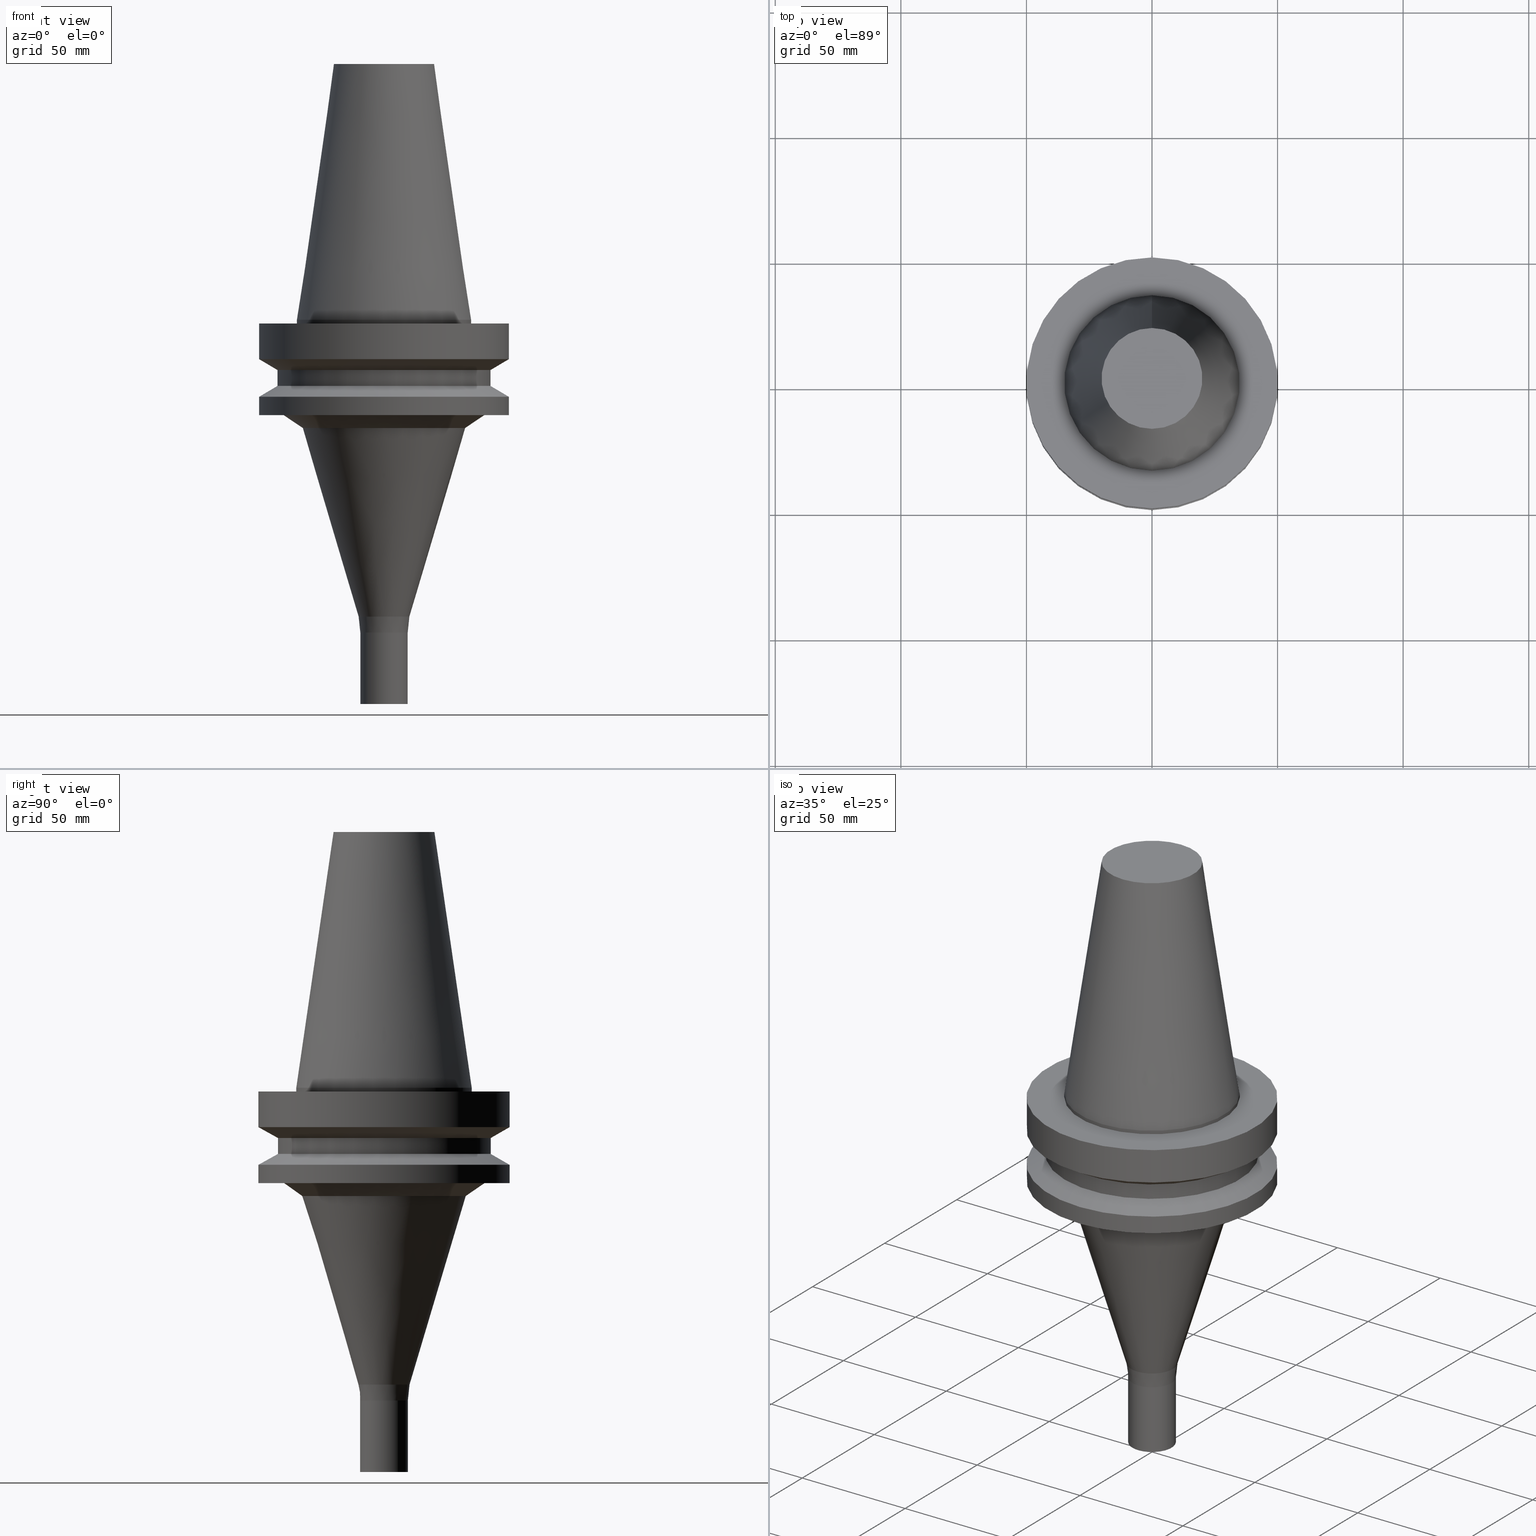
[diagram: canonical four-view strip — front | top / right | iso, engineering-drawing reading convention]
A machine part, canonical four-view strip (front | top / right | iso — engineering-drawing reading convention). The complete STEP part file that produces these views, byte-faithful:
ISO-10303-21;
HEADER;
FILE_DESCRIPTION((''),'1');
FILE_NAME('//Big_tech03/bigt/Translate/11_3D_Field/02_Step_Field/71_\X2\5207524A5DE55177\X0\/11_\X2\30B330F330BF30AF30C830B030EA30C330D7\X0\ CG/01_\X2\30D930FC30B930DB30EB30C0\X0\/BBT50-CG19-153.stp','2013-07-26T00:21:45',(''),(''),'Spatial Interop R18','Kubotek KeyCreator V8.5.1 (14335)',' ');
FILE_SCHEMA(('CONFIG_CONTROL_DESIGN'));
ENDSEC;
DATA;
#1=DESIGN_CONTEXT('',#27,'design');
#2=APPLICATION_PROTOCOL_DEFINITION('INTERNATIONAL STANDARD','config_control_design',1994,#27);
#3=PRODUCT_CATEGORY_RELATIONSHIP('NONE','NONE',#28,#29);
#4=DATE_AND_TIME(#30,#31);
#5=DATE_TIME_ROLE('creation_date');
#6=DATE_TIME_ROLE('classification_date');
#7=PERSON_AND_ORGANIZATION_ROLE('creator');
#8=PERSON_AND_ORGANIZATION_ROLE('design_supplier');
#9=PERSON_AND_ORGANIZATION_ROLE('classification_officer');
#10=PERSON_AND_ORGANIZATION_ROLE('design_owner');
#11=APPROVAL_PERSON_ORGANIZATION(#32,#33,#34);
#12=APPROVAL_DATE_TIME(#4,#33);
#13=CC_DESIGN_APPROVAL(#33,(#35,#36,#37));
#14=CC_DESIGN_DATE_AND_TIME_ASSIGNMENT(#4,#5,(#37));
#15=CC_DESIGN_DATE_AND_TIME_ASSIGNMENT(#4,#6,(#35));
#16=CC_DESIGN_PERSON_AND_ORGANIZATION_ASSIGNMENT(#32,#10,(#38));
#17=CC_DESIGN_PERSON_AND_ORGANIZATION_ASSIGNMENT(#32,#7,(#37));
#18=CC_DESIGN_PERSON_AND_ORGANIZATION_ASSIGNMENT(#32,#7,(#36));
#19=CC_DESIGN_PERSON_AND_ORGANIZATION_ASSIGNMENT(#32,#8,(#36));
#20=CC_DESIGN_SECURITY_CLASSIFICATION(#35,(#36));
#21=CC_DESIGN_PERSON_AND_ORGANIZATION_ASSIGNMENT(#32,#9,(#35));
#22=SHAPE_DEFINITION_REPRESENTATION(#39,#40);
#23= (GEOMETRIC_REPRESENTATION_CONTEXT(3)GLOBAL_UNCERTAINTY_ASSIGNED_CONTEXT((#43))GLOBAL_UNIT_ASSIGNED_CONTEXT((#45,#46,#47))REPRESENTATION_CONTEXT('NONE','WORKSPACE'));
#27=APPLICATION_CONTEXT('CONFIGURATION CONTROLLED 3D DESIGNS OF MECHANICAL PARTS AND ASSEMBLIES');
#28=PRODUCT_CATEGORY('part','NONE');
#29=PRODUCT_RELATED_PRODUCT_CATEGORY('detail',' ',(#38));
#30=CALENDAR_DATE(2013,26,6);
#31=LOCAL_TIME(9,21,45.0,#49);
#32=PERSON_AND_ORGANIZATION(#50,#51);
#33=APPROVAL(#52,'SOLID MODEL');
#34=APPROVAL_ROLE('APPROVED');
#35=SECURITY_CLASSIFICATION('','',#53);
#36=PRODUCT_DEFINITION_FORMATION_WITH_SPECIFIED_SOURCE(' ','NONE',#38,.NOT_KNOWN.);
#37=PRODUCT_DEFINITION('NONE','NONE',#36,#1);
#38=PRODUCT('1','1','PART-1-DESC',(#54));
#39=PRODUCT_DEFINITION_SHAPE('NONE','NONE',#37);
#40=ADVANCED_BREP_SHAPE_REPRESENTATION('1',(#55,#56),#23);
#43=UNCERTAINTY_MEASURE_WITH_UNIT(LENGTH_MEASURE(1.0E-006),#45,'','');
#45= (CONVERSION_BASED_UNIT('MILLIMETRE',#59)LENGTH_UNIT()NAMED_UNIT(#62));
#46= (NAMED_UNIT(#64)PLANE_ANGLE_UNIT()SI_UNIT($,.RADIAN.));
#47= (NAMED_UNIT(#64)SOLID_ANGLE_UNIT()SI_UNIT($,.STERADIAN.));
#49=COORDINATED_UNIVERSAL_TIME_OFFSET(9,0,.AHEAD.);
#50=PERSON('','UNSPECIFIED',$,$,$,$);
#51=ORGANIZATION('UNSPECIFIED','UNSPECIFIED','UNSPECIFIED');
#52=APPROVAL_STATUS('approved');
#53=SECURITY_CLASSIFICATION_LEVEL('unclassified');
#54=MECHANICAL_CONTEXT('',#27,'mechanical');
#55=MANIFOLD_SOLID_BREP('1',#70);
#56=AXIS2_PLACEMENT_3D('',#71,#72,#73);
#59=LENGTH_MEASURE_WITH_UNIT(LENGTH_MEASURE(1.0),#74);
#62=DIMENSIONAL_EXPONENTS(1.0,0.0,0.0,0.0,0.0,0.0,0.0);
#64=DIMENSIONAL_EXPONENTS(0.0,0.0,0.0,0.0,0.0,0.0,0.0);
#70=CLOSED_SHELL('',(#75,#76,#77,#78,#79,#80,#81,#82,#83,#84,#85,#86,#87,#88,#89));
#71=CARTESIAN_POINT('',(0.0,0.0,0.0));
#72=DIRECTION('',(0.0,0.0,1.0));
#73=DIRECTION('',(1.0,0.0,0.0));
#74= (NAMED_UNIT(#62)LENGTH_UNIT()SI_UNIT(.MILLI.,.METRE.));
#75=ADVANCED_FACE('',(#91),#92,.T.);
#76=ADVANCED_FACE('',(#93,#94),#95,.T.);
#77=ADVANCED_FACE('',(#96,#97),#98,.T.);
#78=ADVANCED_FACE('',(#99,#100),#101,.T.);
#79=ADVANCED_FACE('',(#102,#103),#104,.T.);
#80=ADVANCED_FACE('',(#105,#106),#107,.T.);
#81=ADVANCED_FACE('',(#108,#109),#110,.T.);
#82=ADVANCED_FACE('',(#111,#112),#113,.T.);
#83=ADVANCED_FACE('',(#114,#115),#116,.T.);
#84=ADVANCED_FACE('',(#117,#118),#119,.T.);
#85=ADVANCED_FACE('',(#120,#121),#122,.T.);
#86=ADVANCED_FACE('',(#123,#124),#125,.T.);
#87=ADVANCED_FACE('',(#126,#127),#128,.T.);
#88=ADVANCED_FACE('',(#129,#130),#131,.T.);
#89=ADVANCED_FACE('',(#132),#133,.T.);
#91=FACE_OUTER_BOUND('',#134,.T.);
#92=PLANE('',#135);
#93=FACE_BOUND('',#136,.T.);
#94=FACE_BOUND('',#137,.T.);
#95=CONICAL_SURFACE('',#138,27.5020833325942,0.144812498253157);
#96=FACE_BOUND('',#139,.T.);
#97=FACE_BOUND('',#140,.T.);
#98=CYLINDRICAL_SURFACE('',#141,34.925);
#99=FACE_OUTER_BOUND('',#142,.T.);
#100=FACE_BOUND('',#143,.T.);
#101=PLANE('',#144);
#102=FACE_BOUND('',#145,.T.);
#103=FACE_BOUND('',#146,.T.);
#104=CYLINDRICAL_SURFACE('',#147,50.0);
#105=FACE_BOUND('',#148,.T.);
#106=FACE_BOUND('',#149,.T.);
#107=CONICAL_SURFACE('',#150,46.25,1.04719755108882);
#108=FACE_BOUND('',#151,.T.);
#109=FACE_BOUND('',#152,.T.);
#110=CYLINDRICAL_SURFACE('',#153,42.5);
#111=FACE_BOUND('',#154,.T.);
#112=FACE_BOUND('',#155,.T.);
#113=CONICAL_SURFACE('',#156,46.25,1.04719755108882);
#114=FACE_BOUND('',#157,.T.);
#115=FACE_BOUND('',#158,.T.);
#116=CYLINDRICAL_SURFACE('',#159,50.0);
#117=FACE_BOUND('',#160,.T.);
#118=FACE_OUTER_BOUND('',#161,.T.);
#119=PLANE('',#162);
#120=FACE_BOUND('',#163,.T.);
#121=FACE_BOUND('',#164,.T.);
#122=CONICAL_SURFACE('',#165,36.2677459487096,0.969377586918392);
#123=FACE_BOUND('',#166,.T.);
#124=FACE_BOUND('',#167,.T.);
#125=CONICAL_SURFACE('',#168,21.3507060645961,0.289525506681107);
#126=FACE_BOUND('',#169,.T.);
#127=FACE_BOUND('',#170,.T.);
#128=CONICAL_SURFACE('',#171,9.8329601208865,0.104604460992361);
#129=FACE_BOUND('',#172,.T.);
#130=FACE_BOUND('',#173,.T.);
#131=CYLINDRICAL_SURFACE('',#174,9.5);
#132=FACE_OUTER_BOUND('',#175,.T.);
#133=PLANE('',#176);
#134=EDGE_LOOP('',(#177));
#135=AXIS2_PLACEMENT_3D('',#178,#179,#180);
#136=EDGE_LOOP('',(#181));
#137=EDGE_LOOP('',(#182));
#138=AXIS2_PLACEMENT_3D('',#183,#184,#185);
#139=EDGE_LOOP('',(#186));
#140=EDGE_LOOP('',(#187));
#141=AXIS2_PLACEMENT_3D('',#188,#189,#190);
#142=EDGE_LOOP('',(#191));
#143=EDGE_LOOP('',(#192));
#144=AXIS2_PLACEMENT_3D('',#193,#194,#195);
#145=EDGE_LOOP('',(#196));
#146=EDGE_LOOP('',(#197));
#147=AXIS2_PLACEMENT_3D('',#198,#199,#200);
#148=EDGE_LOOP('',(#201));
#149=EDGE_LOOP('',(#202));
#150=AXIS2_PLACEMENT_3D('',#203,#204,#205);
#151=EDGE_LOOP('',(#206));
#152=EDGE_LOOP('',(#207));
#153=AXIS2_PLACEMENT_3D('',#208,#209,#210);
#154=EDGE_LOOP('',(#211));
#155=EDGE_LOOP('',(#212));
#156=AXIS2_PLACEMENT_3D('',#213,#214,#215);
#157=EDGE_LOOP('',(#216));
#158=EDGE_LOOP('',(#217));
#159=AXIS2_PLACEMENT_3D('',#218,#219,#220);
#160=EDGE_LOOP('',(#221));
#161=EDGE_LOOP('',(#222));
#162=AXIS2_PLACEMENT_3D('',#223,#224,#225);
#163=EDGE_LOOP('',(#226));
#164=EDGE_LOOP('',(#227));
#165=AXIS2_PLACEMENT_3D('',#228,#229,#230);
#166=EDGE_LOOP('',(#231));
#167=EDGE_LOOP('',(#232));
#168=AXIS2_PLACEMENT_3D('',#233,#234,#235);
#169=EDGE_LOOP('',(#236));
#170=EDGE_LOOP('',(#237));
#171=AXIS2_PLACEMENT_3D('',#238,#239,#240);
#172=EDGE_LOOP('',(#241));
#173=EDGE_LOOP('',(#242));
#174=AXIS2_PLACEMENT_3D('',#243,#244,#245);
#175=EDGE_LOOP('',(#246));
#176=AXIS2_PLACEMENT_3D('',#247,#248,#249);
#177=ORIENTED_EDGE('',*,*,#250,.F.);
#178=CARTESIAN_POINT('',(-6.23345220766003E-015,10.0395833325942,101.8));
#179=DIRECTION('',(-6.12323399573677E-017,-1.22464679914735E-016,1.0));
#180=DIRECTION('',(1.23259516440783E-032,-1.0,-1.22464679914735E-016));
#181=ORIENTED_EDGE('',*,*,#251,.F.);
#182=ORIENTED_EDGE('',*,*,#250,.T.);
#183=CARTESIAN_POINT('',(-3.11672610383001E-015,-6.23345220766003E-015,50.9));
#184=DIRECTION('',(6.12323399573677E-017,1.22464679914735E-016,-1.0));
#185=DIRECTION('',(-1.23259516440783E-032,1.0,1.22464679914735E-016));
#186=ORIENTED_EDGE('',*,*,#252,.F.);
#187=ORIENTED_EDGE('',*,*,#251,.T.);
#188=CARTESIAN_POINT('',(4.59242549680257E-017,9.18485099360515E-017,-0.75));
#189=DIRECTION('',(-6.12323399573677E-017,-1.22464679914735E-016,1.0));
#190=DIRECTION('',(-1.23259516440783E-032,1.0,1.22464679914735E-016));
#191=ORIENTED_EDGE('',*,*,#253,.F.);
#192=ORIENTED_EDGE('',*,*,#252,.T.);
#193=CARTESIAN_POINT('',(9.1848509936051E-017,42.4625,-1.49999999999999));
#194=DIRECTION('',(-6.12323399573677E-017,-1.22464679914735E-016,1.0));
#195=DIRECTION('',(1.23259516440783E-032,-1.0,-1.22464679914735E-016));
#196=ORIENTED_EDGE('',*,*,#254,.F.);
#197=ORIENTED_EDGE('',*,*,#253,.T.);
#198=CARTESIAN_POINT('',(5.26598123633362E-016,1.05319624726672E-015,-8.59999999999999));
#199=DIRECTION('',(-6.12323399573677E-017,-1.22464679914735E-016,1.0));
#200=DIRECTION('',(-1.23259516440783E-032,1.0,1.22464679914735E-016));
#201=ORIENTED_EDGE('',*,*,#255,.F.);
#202=ORIENTED_EDGE('',*,*,#254,.T.);
#203=CARTESIAN_POINT('',(1.09391964220428E-015,2.18783928440857E-015,-17.86506351));
#204=DIRECTION('',(-6.12323399573676E-017,-1.22464679914735E-016,1.0));
#205=DIRECTION('',(-1.23259516440783E-032,1.0,1.22464679914735E-016));
#206=ORIENTED_EDGE('',*,*,#256,.F.);
#207=ORIENTED_EDGE('',*,*,#255,.T.);
#208=CARTESIAN_POINT('',(1.42059028701093E-015,2.84118057402186E-015,-23.2));
#209=DIRECTION('',(-6.12323399573677E-017,-1.22464679914735E-016,1.0));
#210=DIRECTION('',(-1.23259516440783E-032,1.0,1.22464679914735E-016));
#211=ORIENTED_EDGE('',*,*,#257,.F.);
#212=ORIENTED_EDGE('',*,*,#256,.T.);
#213=CARTESIAN_POINT('',(1.74726093181758E-015,3.49452186363515E-015,-28.53493649));
#214=DIRECTION('',(6.12323399573676E-017,1.22464679914735E-016,-1.0));
#215=DIRECTION('',(-1.23259516440783E-032,1.0,1.22464679914735E-016));
#216=ORIENTED_EDGE('',*,*,#258,.F.);
#217=ORIENTED_EDGE('',*,*,#257,.T.);
#218=CARTESIAN_POINT('',(2.10333087753558E-015,4.20666175507116E-015,-34.35));
#219=DIRECTION('',(-6.12323399573677E-017,-1.22464679914735E-016,1.0));
#220=DIRECTION('',(-1.23259516440783E-032,1.0,1.22464679914735E-016));
#221=ORIENTED_EDGE('',*,*,#259,.F.);
#222=ORIENTED_EDGE('',*,*,#258,.T.);
#223=CARTESIAN_POINT('',(2.32682891837997E-015,45.000000005,-38.0));
#224=DIRECTION('',(6.12323399573677E-017,1.22464679914735E-016,-1.0));
#225=DIRECTION('',(-1.23259516440783E-032,1.0,1.22464679914735E-016));
#226=ORIENTED_EDGE('',*,*,#260,.F.);
#227=ORIENTED_EDGE('',*,*,#259,.T.);
#228=CARTESIAN_POINT('',(2.48365433227182E-015,4.96730866454364E-015,-40.5611533709317));
#229=DIRECTION('',(-6.12323399573677E-017,-1.22464679914735E-016,1.0));
#230=DIRECTION('',(-1.23259516440783E-032,1.0,1.22464679914735E-016));
#231=ORIENTED_EDGE('',*,*,#261,.F.);
#232=ORIENTED_EDGE('',*,*,#260,.T.);
#233=CARTESIAN_POINT('',(4.93950473766982E-015,9.87900947533964E-015,-80.6682341571283));
#234=DIRECTION('',(-6.12323399573677E-017,-1.22464679914735E-016,1.0));
#235=DIRECTION('',(-1.23259516440783E-032,1.0,1.22464679914735E-016));
#236=ORIENTED_EDGE('',*,*,#262,.F.);
#237=ORIENTED_EDGE('',*,*,#261,.T.);
#238=CARTESIAN_POINT('',(7.43272327139375E-015,1.48654465427875E-014,-121.385582791197));
#239=DIRECTION('',(-6.12323399573677E-017,-1.22464679914735E-016,1.0));
#240=DIRECTION('',(-1.23259516440783E-032,1.0,1.22464679914735E-016));
#241=ORIENTED_EDGE('',*,*,#263,.F.);
#242=ORIENTED_EDGE('',*,*,#262,.T.);
#243=CARTESIAN_POINT('',(8.49773241354439E-015,1.69954648270888E-014,-138.778502005));
#244=DIRECTION('',(-6.12323399573677E-017,-1.22464679914735E-016,1.0));
#245=DIRECTION('',(-1.23259516440783E-032,1.0,1.22464679914735E-016));
#246=ORIENTED_EDGE('',*,*,#263,.T.);
#247=CARTESIAN_POINT('',(9.36854801347725E-015,4.75000000000002,-153.0));
#248=DIRECTION('',(6.12323399573677E-017,1.22464679914735E-016,-1.0));
#249=DIRECTION('',(-1.23259516440783E-032,1.0,1.22464679914735E-016));
#250=EDGE_CURVE('',#264,#264,#265,.T.);
#251=EDGE_CURVE('',#266,#266,#267,.T.);
#252=EDGE_CURVE('',#268,#268,#269,.T.);
#253=EDGE_CURVE('',#270,#270,#271,.T.);
#254=EDGE_CURVE('',#272,#272,#273,.T.);
#255=EDGE_CURVE('',#274,#274,#275,.T.);
#256=EDGE_CURVE('',#276,#276,#277,.T.);
#257=EDGE_CURVE('',#278,#278,#279,.T.);
#258=EDGE_CURVE('',#280,#280,#281,.T.);
#259=EDGE_CURVE('',#282,#282,#283,.T.);
#260=EDGE_CURVE('',#284,#284,#285,.T.);
#261=EDGE_CURVE('',#286,#286,#287,.T.);
#262=EDGE_CURVE('',#288,#288,#289,.T.);
#263=EDGE_CURVE('',#290,#290,#291,.T.);
#264=VERTEX_POINT('',#292);
#265=CIRCLE('',#293,20.0791666651885);
#266=VERTEX_POINT('',#294);
#267=CIRCLE('',#295,34.925);
#268=VERTEX_POINT('',#296);
#269=CIRCLE('',#297,34.925);
#270=VERTEX_POINT('',#298);
#271=CIRCLE('',#299,50.0);
#272=VERTEX_POINT('',#300);
#273=CIRCLE('',#301,50.0);
#274=VERTEX_POINT('',#302);
#275=CIRCLE('',#303,42.5);
#276=VERTEX_POINT('',#304);
#277=CIRCLE('',#305,42.5);
#278=VERTEX_POINT('',#306);
#279=CIRCLE('',#307,50.0);
#280=VERTEX_POINT('',#308);
#281=CIRCLE('',#309,50.0);
#282=VERTEX_POINT('',#310);
#283=CIRCLE('',#311,40.00000001);
#284=VERTEX_POINT('',#312);
#285=CIRCLE('',#313,32.5354918874192);
#286=VERTEX_POINT('',#314);
#287=CIRCLE('',#315,10.165920241773);
#288=VERTEX_POINT('',#316);
#289=CIRCLE('',#317,9.5);
#290=VERTEX_POINT('',#318);
#291=CIRCLE('',#319,9.5);
#292=CARTESIAN_POINT('',(-6.23345220766003E-015,20.0791666651884,101.8));
#293=AXIS2_PLACEMENT_3D('',#320,#321,#322);
#294=CARTESIAN_POINT('',(-4.30483861169435E-031,34.925,4.27707894602213E-015));
#295=AXIS2_PLACEMENT_3D('',#323,#324,#325);
#296=CARTESIAN_POINT('',(9.18485099360511E-017,34.925,-1.5));
#297=AXIS2_PLACEMENT_3D('',#326,#327,#328);
#298=CARTESIAN_POINT('',(9.18485099360509E-017,50.0,-1.49999999999999));
#299=AXIS2_PLACEMENT_3D('',#329,#330,#331);
#300=CARTESIAN_POINT('',(9.61347737330672E-016,50.0,-15.7));
#301=AXIS2_PLACEMENT_3D('',#332,#333,#334);
#302=CARTESIAN_POINT('',(1.2264915470779E-015,42.5,-20.03012702));
#303=AXIS2_PLACEMENT_3D('',#335,#336,#337);
#304=CARTESIAN_POINT('',(1.61468902694396E-015,42.5,-26.36987298));
#305=AXIS2_PLACEMENT_3D('',#338,#339,#340);
#306=CARTESIAN_POINT('',(1.87983283669119E-015,50.0,-30.7));
#307=AXIS2_PLACEMENT_3D('',#341,#342,#343);
#308=CARTESIAN_POINT('',(2.32682891837997E-015,50.0,-38.0));
#309=AXIS2_PLACEMENT_3D('',#344,#345,#346);
#310=CARTESIAN_POINT('',(2.32682891837997E-015,40.00000001,-38.0));
#311=AXIS2_PLACEMENT_3D('',#347,#348,#349);
#312=CARTESIAN_POINT('',(2.64047974616367E-015,32.5354918874192,-43.1223067418634));
#313=AXIS2_PLACEMENT_3D('',#350,#351,#352);
#314=CARTESIAN_POINT('',(7.23852972917597E-015,10.165920241773,-118.214161572393));
#315=AXIS2_PLACEMENT_3D('',#353,#354,#355);
#316=CARTESIAN_POINT('',(7.62691681361153E-015,9.50000000000002,-124.55700401));
#317=AXIS2_PLACEMENT_3D('',#356,#357,#358);
#318=CARTESIAN_POINT('',(9.36854801347725E-015,9.50000000000002,-153.0));
#319=AXIS2_PLACEMENT_3D('',#359,#360,#361);
#320=CARTESIAN_POINT('',(-6.23345220766003E-015,-1.24669044153201E-014,101.8));
#321=DIRECTION('',(6.12323399573677E-017,1.22464679914735E-016,-1.0));
#322=DIRECTION('',(-1.23259516440783E-032,1.0,1.22464679914735E-016));
#323=CARTESIAN_POINT('',(0.0,0.0,0.0));
#324=DIRECTION('',(6.12323399573677E-017,1.22464679914735E-016,-1.0));
#325=DIRECTION('',(-1.23259516440783E-032,1.0,1.22464679914735E-016));
#326=CARTESIAN_POINT('',(9.18485099360515E-017,1.83697019872103E-016,-1.5));
#327=DIRECTION('',(6.12323399573677E-017,1.22464679914735E-016,-1.0));
#328=DIRECTION('',(-1.23259516440783E-032,1.0,1.22464679914735E-016));
#329=CARTESIAN_POINT('',(9.18485099360515E-017,1.83697019872103E-016,-1.5));
#330=DIRECTION('',(6.12323399573677E-017,1.22464679914735E-016,-1.0));
#331=DIRECTION('',(-1.23259516440783E-032,1.0,1.22464679914735E-016));
#332=CARTESIAN_POINT('',(9.61347737330672E-016,1.92269547466134E-015,-15.7));
#333=DIRECTION('',(6.12323399573677E-017,1.22464679914735E-016,-1.0));
#334=DIRECTION('',(-1.23259516440783E-032,1.0,1.22464679914735E-016));
#335=CARTESIAN_POINT('',(1.2264915470779E-015,2.45298309415579E-015,-20.03012702));
#336=DIRECTION('',(6.12323399573677E-017,1.22464679914735E-016,-1.0));
#337=DIRECTION('',(-1.23259516440783E-032,1.0,1.22464679914735E-016));
#338=CARTESIAN_POINT('',(1.61468902694396E-015,3.22937805388793E-015,-26.36987298));
#339=DIRECTION('',(6.12323399573677E-017,1.22464679914735E-016,-1.0));
#340=DIRECTION('',(-1.23259516440783E-032,1.0,1.22464679914735E-016));
#341=CARTESIAN_POINT('',(1.87983283669119E-015,3.75966567338237E-015,-30.7));
#342=DIRECTION('',(6.12323399573677E-017,1.22464679914735E-016,-1.0));
#343=DIRECTION('',(-1.23259516440783E-032,1.0,1.22464679914735E-016));
#344=CARTESIAN_POINT('',(2.32682891837997E-015,4.65365783675994E-015,-38.0));
#345=DIRECTION('',(6.12323399573677E-017,1.22464679914735E-016,-1.0));
#346=DIRECTION('',(-1.23259516440783E-032,1.0,1.22464679914735E-016));
#347=CARTESIAN_POINT('',(2.32682891837997E-015,4.65365783675994E-015,-38.0));
#348=DIRECTION('',(6.12323399573677E-017,1.22464679914735E-016,-1.0));
#349=DIRECTION('',(-1.23259516440783E-032,1.0,1.22464679914735E-016));
#350=CARTESIAN_POINT('',(2.64047974616367E-015,5.28095949232733E-015,-43.1223067418634));
#351=DIRECTION('',(6.12323399573677E-017,1.22464679914735E-016,-1.0));
#352=DIRECTION('',(-1.23259516440783E-032,1.0,1.22464679914735E-016));
#353=CARTESIAN_POINT('',(7.23852972917597E-015,1.44770594583519E-014,-118.214161572393));
#354=DIRECTION('',(6.12323399573676E-017,1.22464679914735E-016,-1.0));
#355=DIRECTION('',(-1.23259516440783E-032,1.0,1.22464679914735E-016));
#356=CARTESIAN_POINT('',(7.62691681361153E-015,1.5253833627223E-014,-124.55700401));
#357=DIRECTION('',(6.12323399573677E-017,1.22464679914735E-016,-1.0));
#358=DIRECTION('',(-1.23259516440783E-032,1.0,1.22464679914735E-016));
#359=CARTESIAN_POINT('',(9.36854801347725E-015,1.87370960269545E-014,-153.0));
#360=DIRECTION('',(6.12323399573677E-017,1.22464679914735E-016,-1.0));
#361=DIRECTION('',(-1.23259516440783E-032,1.0,1.22464679914735E-016));
ENDSEC;
END-ISO-10303-21;
